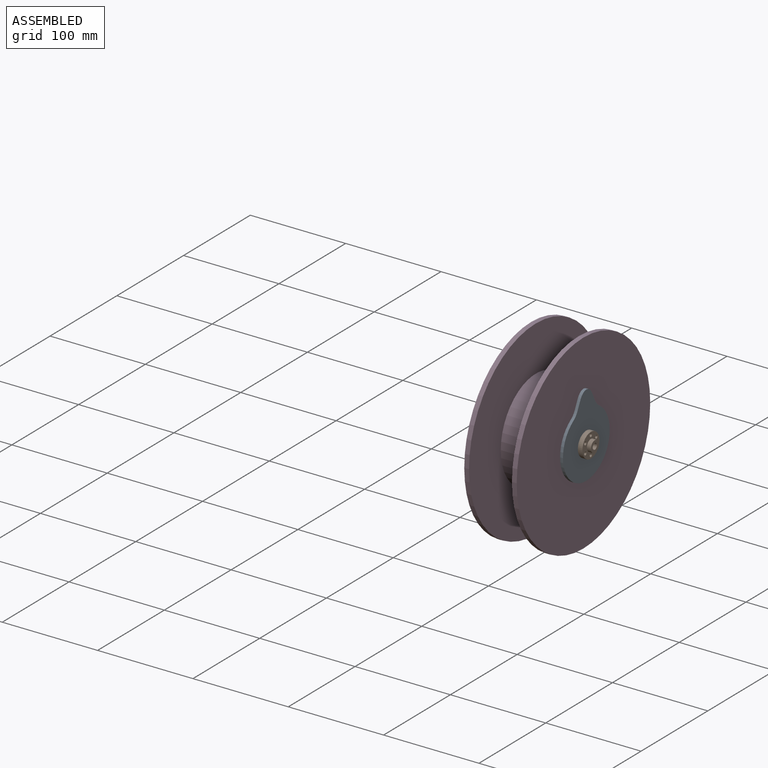
[diagram: assembled view]
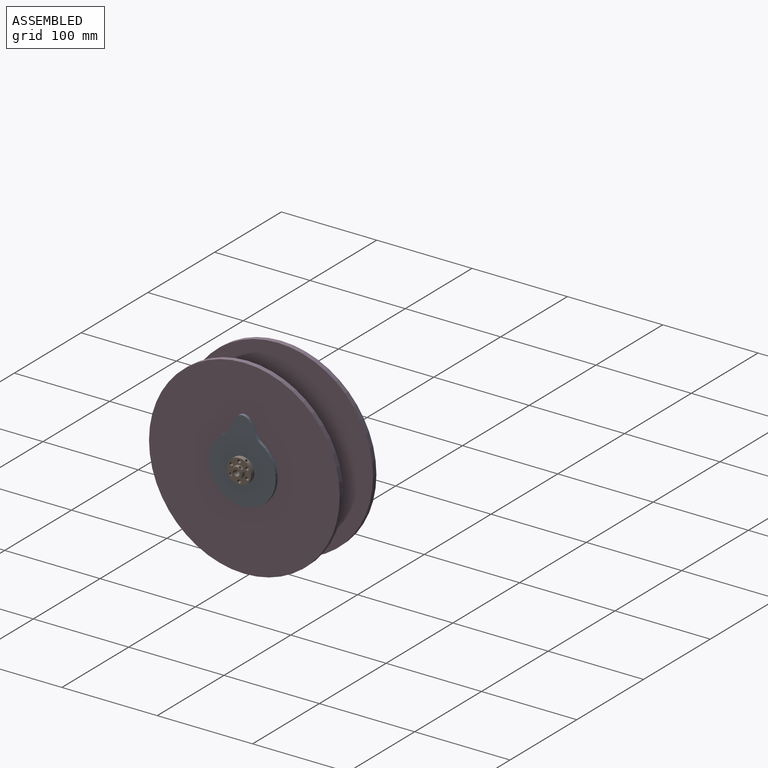
[diagram: assembled view, second angle]
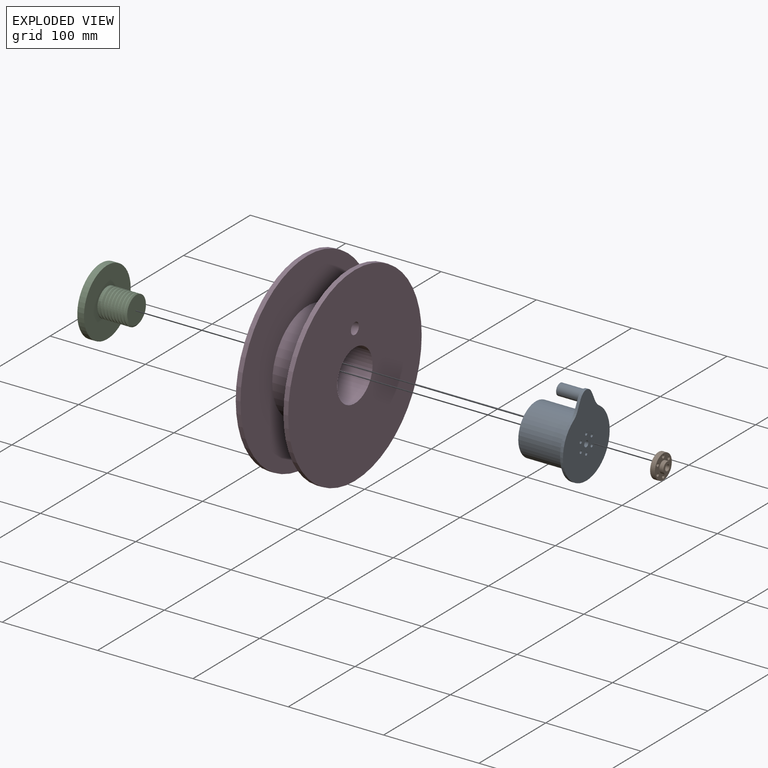
[diagram: exploded view]
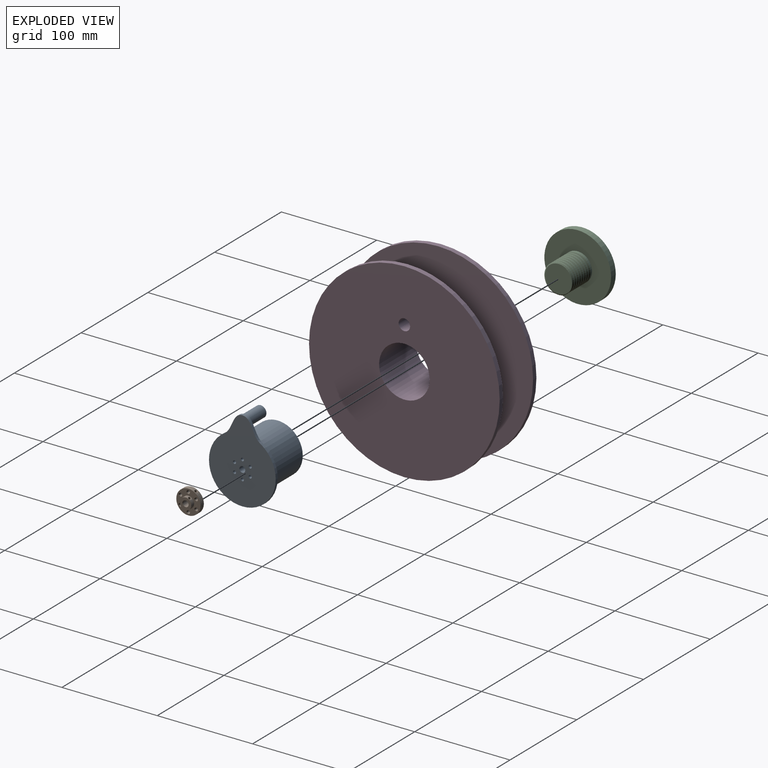
[diagram: exploded view, second angle]
ASSEMBLY  parts=4 mates=3
PART A: 33 faces, bbox 70x86.5x55.1 mm
  f0: extruded ~22.19x19.14mm, area 91.8mm2, adj f1,f2,f3,f4
  f1: extruded ~22.19x19.14mm, area 91.8mm2, adj f0,f2,f3,f4
  f2: cylinder r=35mm len=70mm, axis (0,0,-1), area 538.3mm2, adj f0,f1,f3,f4
  f3: plane 86.5x70mm, normal (0,0,1), area 1907.4mm2, adj f0,f1,f2,f5,f7
  f4: plane 86.5x70mm, normal (0,0,-1), area 4106.8mm2, adj f0,f1,f2,f26,f27,f28,f29,f30
  f5: cylinder r=6mm len=24.5mm, axis (0,0,-1), area 923.6mm2, adj f3,f6
  f6: plane 12x12mm, normal (0,0,1), area 113.1mm2, adj f5
  f7: cylinder r=26.25mm len=52.5mm, axis (0,0,-1), area 8246.7mm2, adj f3,f8
  f8: plane 52.51x52.51mm, normal (0,0,1), area 1399.6mm2, adj f7,f9,f11,f12
  f9: cone r=13.11mm half-angle=45deg, axis (0,0,1), area 171.4mm2, adj f8,f11,f12,f14,f24
  f10: plane 2.57x1.74mm, normal (-0.78,0.62,0), area 2.8mm2, adj f11,f12,f13
  f11: bspline ~44.08x36.26mm, area 2762.7mm2, adj f8,f9,f10,f12,f13,f14,f15,f16
  f12: bspline ~44.08x36.26mm, area 2678.1mm2, adj f8,f9,f10,f11,f13,f14,f15,f16
  f13: cylinder r=13.49mm len=26.97mm, axis (0,0,1), area 235.2mm2, adj f10,f11,f12,f23,f25
  f14: cylinder r=13.49mm len=26.97mm, axis (0,0,1), area 70.8mm2, adj f9,f11,f12,f15,f24
  f15: cylinder r=13.49mm len=26.97mm, axis (0,0,1), area 79.4mm2, adj f11,f12,f14,f16
  f16: cylinder r=13.49mm len=26.97mm, axis (0,0,1), area 79.5mm2, adj f11,f12,f15,f17
  f17: cylinder r=13.49mm len=26.97mm, axis (0,0,1), area 79.5mm2, adj f11,f12,f16,f18
  f18: cylinder r=13.49mm len=26.97mm, axis (0,0,1), area 79.5mm2, adj f11,f12,f17,f19
  f19: cylinder r=13.49mm len=26.97mm, axis (0,0,1), area 79.4mm2, adj f11,f12,f18,f20
  f20: cylinder r=13.49mm len=26.97mm, axis (0,0,1), area 79.4mm2, adj f11,f12,f19,f21
  f21: cylinder r=13.49mm len=26.97mm, axis (0,0,1), area 79.6mm2, adj f11,f12,f20,f22
  f22: cylinder r=13.49mm len=26.97mm, axis (0,0,1), area 79.7mm2, adj f11,f12,f21,f23
  f23: cylinder r=13.49mm len=26.97mm, axis (0,0,1), area 79.6mm2, adj f11,f12,f13,f22
  f24: cylinder r=13.49mm len=2.52mm, axis (0,0,1), area 0.1mm2, adj f9,f12,f14
  f25: plane 26.97x26.97mm, normal (0,0,1), area 492.8mm2, adj f13,f26,f27,f28,f29,f30,f31,f32
  f26: cylinder r=1.6mm len=10mm, axis (0,0,-1), area 100.5mm2, adj f4,f25
  f27: cylinder r=3.1mm len=10mm, axis (0,0,-1), area 194.8mm2, adj f4,f25
  f28: cylinder r=1.6mm len=10mm, axis (0,0,-1), area 100.5mm2, adj f4,f25
  f29: cylinder r=1.6mm len=10mm, axis (0,0,-1), area 100.5mm2, adj f4,f25
  f30: cylinder r=1.6mm len=10mm, axis (0,0,-1), area 100.5mm2, adj f4,f25
  f31: cylinder r=1.6mm len=10mm, axis (0,0,-1), area 100.5mm2, adj f4,f25
  f32: cylinder r=1.6mm len=10mm, axis (0,0,-1), area 100.5mm2, adj f4,f25
PART B: 277 faces, bbox 25.4x25.4x9.2 mm
  f0: bspline ~3.27x2.94mm, area 5.6mm2, adj f17,f26
  f1: bspline ~3.07x2.86mm, area 4.8mm2, adj f16,f19
  f2: cone r=3mm half-angle=45deg, axis (0,0,1), area 5.5mm2, adj f18,f29
  f3: cone r=3.2mm half-angle=45deg, axis (0,0,-1), area 5.5mm2, adj f18,f28
  f4: cone r=1.25mm half-angle=45deg, axis (0,0,1), area 6.7mm2, adj f25,f27
  f5: cone r=1.25mm half-angle=45deg, axis (0,0,1), area 6.7mm2, adj f24,f27
  f6: cone r=1.25mm half-angle=45deg, axis (0,0,1), area 6.7mm2, adj f23,f27
  f7: cone r=1.25mm half-angle=45deg, axis (0,0,1), area 6.7mm2, adj f22,f27
  f8: cone r=1.25mm half-angle=45deg, axis (0,0,1), area 6.7mm2, adj f21,f27
  f9: cone r=1.25mm half-angle=45deg, axis (0,0,1), area 6.7mm2, adj f20,f27
  f10: cone r=1.75mm half-angle=45deg, axis (0,0,-1), area 6.7mm2, adj f20,f28
  f11: cone r=1.75mm half-angle=45deg, axis (0,0,-1), area 6.7mm2, adj f25,f28
  f12: cone r=1.75mm half-angle=45deg, axis (0,0,-1), area 6.7mm2, adj f24,f28
  f13: cone r=1.75mm half-angle=45deg, axis (0,0,-1), area 6.7mm2, adj f23,f28
  f14: cone r=1.75mm half-angle=45deg, axis (0,0,-1), area 6.7mm2, adj f22,f28
  f15: cone r=1.75mm half-angle=45deg, axis (0,0,-1), area 6.7mm2, adj f21,f28
  f16: cylinder r=1.25mm len=3.72mm, axis (0.5,0.87,0), area 20.5mm2, adj f1,f18
  f17: cylinder r=1.25mm len=9.5mm, axis (0.5,0.87,0), area 73.3mm2, adj f0,f18
  f18: cylinder r=3mm len=8.8mm, axis (0,0,1), area 155.8mm2, adj f2,f3,f16,f17
  f19: cylinder r=6mm len=12mm, axis (0,0,-1), area 150.3mm2, adj f1,f27,f29
  f20: cylinder r=1.25mm len=4mm, axis (0,0,1), area 31.4mm2, adj f9,f10
  f21: cylinder r=1.25mm len=4mm, axis (0,0,1), area 31.4mm2, adj f8,f15
  f22: cylinder r=1.25mm len=4mm, axis (0,0,1), area 31.4mm2, adj f7,f14
  f23: cylinder r=1.25mm len=4mm, axis (0,0,1), area 31.4mm2, adj f6,f13
  f24: cylinder r=1.25mm len=4mm, axis (0,0,1), area 31.4mm2, adj f5,f12
  f25: cylinder r=1.25mm len=4mm, axis (0,0,1), area 31.4mm2, adj f4,f11
  f26: cylinder r=12.7mm len=25.4mm, axis (0,0,-1), area 390.2mm2, adj f0,f27,f28
  f27: plane 25.4x25.4mm, normal (0,0,1), area 325.6mm2, adj f4,f5,f6,f7,f8,f9,f19,f26
  f28: plane 25.4x25.4mm, normal (0,0,-1), area 416.8mm2, adj f3,f10,f11,f12,f13,f14,f15,f26
  f29: plane 12x12mm, normal (0,0,1), area 80.9mm2, adj f2,f19
  f30: plane 0.05x0.04mm, normal (0,-1,0), area 0mm2, adj f27,f31,f42,f43
  f31: plane 0.22x0.06mm, normal (-0.97,0.25,0), area 0mm2, adj f27,f30,f32,f43
  f32: plane 0.05x0.03mm, normal (0,1,0), area 0mm2, adj f27,f31,f33,f43
  f33: plane 0.17x0.06mm, normal (0.95,0.31,0), area 0mm2, adj f27,f32,f34,f43
  f34: plane 0.17x0.06mm, normal (-0.95,0.31,0), area 0mm2, adj f27,f33,f35,f43
  f35: plane 0.05x0.03mm, normal (0,1,0), area 0mm2, adj f27,f34,f36,f43
  f36: plane 0.22x0.06mm, normal (0.97,0.25,0), area 0mm2, adj f27,f35,f37,f43
  f37: plane 0.05x0.04mm, normal (0,-1,0), area 0mm2, adj f27,f36,f38,f43
  f38: plane 0.17x0.05mm, normal (-0.97,-0.23,0), area 0mm2, adj f27,f37,f39,f43
  f39: plane 0.17x0.06mm, normal (0.95,-0.31,0), area 0mm2, adj f27,f38,f40,f43
  f40: plane 0.05x0.03mm, normal (0,-1,0), area 0mm2, adj f27,f39,f41,f43
  f41: plane 0.17x0.06mm, normal (-0.95,-0.31,0), area 0mm2, adj f27,f40,f42,f43
  f42: plane 0.17x0.05mm, normal (0.98,-0.21,0), area 0mm2, adj f27,f30,f41,f43
  f43: plane 0.3x0.22mm, normal (0,0,1), area 0mm2, adj f30,f31,f32,f33,f34,f35,f36,f37
  f44: plane 0.05x0.04mm, normal (0,-1,0), area 0mm2, adj f27,f45,f56,f57
  f45: plane 0.22x0.06mm, normal (-0.97,0.25,0), area 0mm2, adj f27,f44,f46,f57
  f46: plane 0.05x0.03mm, normal (0,1,0), area 0mm2, adj f27,f45,f47,f57
  f47: plane 0.17x0.06mm, normal (0.95,0.31,0), area 0mm2, adj f27,f46,f48,f57
  f48: plane 0.17x0.06mm, normal (-0.95,0.31,0), area 0mm2, adj f27,f47,f49,f57
  f49: plane 0.05x0.03mm, normal (0,1,0), area 0mm2, adj f27,f48,f50,f57
  f50: plane 0.22x0.06mm, normal (0.97,0.25,0), area 0mm2, adj f27,f49,f51,f57
  f51: plane 0.05x0.04mm, normal (0,-1,0), area 0mm2, adj f27,f50,f52,f57
  f52: plane 0.17x0.05mm, normal (-0.97,-0.23,0), area 0mm2, adj f27,f51,f53,f57
  f53: plane 0.17x0.06mm, normal (0.95,-0.31,0), area 0mm2, adj f27,f52,f54,f57
  f54: plane 0.05x0.03mm, normal (0,-1,0), area 0mm2, adj f27,f53,f55,f57
  f55: plane 0.17x0.06mm, normal (-0.95,-0.31,0), area 0mm2, adj f27,f54,f56,f57
  f56: plane 0.17x0.05mm, normal (0.98,-0.21,0), area 0mm2, adj f27,f44,f55,f57
  f57: plane 0.3x0.22mm, normal (0,0,1), area 0mm2, adj f44,f45,f46,f47,f48,f49,f50,f51
  f58: plane 0.05x0.04mm, normal (0,-1,0), area 0mm2, adj f27,f59,f70,f71
  f59: plane 0.22x0.06mm, normal (-0.97,0.25,0), area 0mm2, adj f27,f58,f60,f71
  f60: plane 0.05x0.03mm, normal (0,1,0), area 0mm2, adj f27,f59,f61,f71
  f61: plane 0.17x0.06mm, normal (0.95,0.31,0), area 0mm2, adj f27,f60,f62,f71
  f62: plane 0.17x0.06mm, normal (-0.95,0.31,0), area 0mm2, adj f27,f61,f63,f71
  f63: plane 0.05x0.03mm, normal (0,1,0), area 0mm2, adj f27,f62,f64,f71
  f64: plane 0.22x0.06mm, normal (0.97,0.25,0), area 0mm2, adj f27,f63,f65,f71
  f65: plane 0.05x0.04mm, normal (0,-1,0), area 0mm2, adj f27,f64,f66,f71
  f66: plane 0.17x0.05mm, normal (-0.97,-0.23,0), area 0mm2, adj f27,f65,f67,f71
  f67: plane 0.17x0.06mm, normal (0.95,-0.31,0), area 0mm2, adj f27,f66,f68,f71
  f68: plane 0.05x0.03mm, normal (0,-1,0), area 0mm2, adj f27,f67,f69,f71
  f69: plane 0.17x0.06mm, normal (-0.95,-0.31,0), area 0mm2, adj f27,f68,f70,f71
  f70: plane 0.17x0.05mm, normal (0.98,-0.21,0), area 0mm2, adj f27,f58,f69,f71
  f71: plane 0.3x0.22mm, normal (0,0,1), area 0mm2, adj f58,f59,f60,f61,f62,f63,f64,f65
  f72: plane 0.06x0.05mm, normal (-1,0,0), area 0mm2, adj f27,f73,f75,f76
  f73: plane 0.05x0.05mm, normal (0,1,0), area 0mm2, adj f27,f72,f74,f76
  f74: plane 0.06x0.05mm, normal (1,0,0), area 0mm2, adj f27,f73,f75,f76
  f75: plane 0.05x0.05mm, normal (0,-1,0), area 0mm2, adj f27,f72,f74,f76
  f76: plane 0.06x0.05mm, normal (0,0,1), area 0mm2, adj f72,f73,f74,f75
  f77: extruded ~0.11x0.08mm, area 0mm2, adj f27,f78,f86,f87
  f78: extruded ~0.09x0.05mm, area 0mm2, adj f27,f77,f79,f87
  f79: cylinder r=0.09mm len=0.07mm, axis (0,0,-1), area 0mm2, adj f27,f78,f80,f87
  f80: cylinder r=0.11mm len=0.06mm, axis (0,0,-1), area 0mm2, adj f27,f79,f81,f87
  f81: plane 0.09x0.05mm, normal (-1,0,0), area 0mm2, adj f27,f80,f82,f87
  f82: plane 0.05x0.04mm, normal (0,1,0), area 0mm2, adj f27,f81,f83,f87
  f83: plane 0.3x0.05mm, normal (1,0,0), area 0mm2, adj f27,f82,f84,f87
  f84: plane 0.05x0.04mm, normal (0,-1,0), area 0mm2, adj f27,f83,f85,f87
  f85: plane 0.05x0.02mm, normal (-1,0,0), area 0mm2, adj f27,f84,f86,f87
  f86: extruded ~0.07x0.05mm, area 0mm2, adj f27,f77,f85,f87
  f87: plane 0.31x0.19mm, normal (0,0,1), area 0mm2, adj f77,f78,f79,f80,f81,f82,f83,f84
  f88: extruded ~0.08x0.06mm, area 0mm2, adj f87,f89,f92,f93
  f89: cylinder r=0.14mm len=0.05mm, axis (0,0,1), area 0mm2, adj f87,f88,f90,f93
  f90: plane 0.13x0.05mm, normal (-1,0,0), area 0mm2, adj f87,f89,f91,f93
  f91: extruded ~0.06x0.05mm, area 0mm2, adj f87,f90,f92,f93
  f92: extruded ~0.08x0.05mm, area 0mm2, adj f87,f88,f91,f93
  f93: plane 0.17x0.12mm, normal (0,0,1), area 0mm2, adj f88,f89,f90,f91,f92
  f94: extruded ~0.12x0.1mm, area 0mm2, adj f27,f95,f97,f98
  f95: extruded ~0.12x0.1mm, area 0mm2, adj f27,f94,f96,f98
  f96: extruded ~0.12x0.1mm, area 0mm2, adj f27,f95,f97,f98
  f97: extruded ~0.12x0.1mm, area 0mm2, adj f27,f94,f96,f98
  f98: plane 0.24x0.2mm, normal (0,0,1), area 0mm2, adj f94,f95,f96,f97,f99,f100,f101,f102
  f99: extruded ~0.08x0.06mm, area 0mm2, adj f98,f100,f102,f103
  f100: extruded ~0.08x0.06mm, area 0mm2, adj f98,f99,f101,f103
  f101: extruded ~0.08x0.06mm, area 0mm2, adj f98,f100,f102,f103
  f102: extruded ~0.08x0.06mm, area 0mm2, adj f98,f99,f101,f103
  f103: plane 0.17x0.13mm, normal (0,0,1), area 0mm2, adj f99,f100,f101,f102
  f104: plane 0.31x0.05mm, normal (-1,0,0), area 0mm2, adj f27,f105,f107,f108
  f105: plane 0.05x0.04mm, normal (0,1,0), area 0mm2, adj f27,f104,f106,f108
  f106: plane 0.31x0.05mm, normal (1,0,0), area 0mm2, adj f27,f105,f107,f108
  f107: plane 0.05x0.04mm, normal (0,-1,0), area 0mm2, adj f27,f104,f106,f108
  f108: plane 0.31x0.04mm, normal (0,0,1), area 0mm2, adj f104,f105,f106,f107
  f109: extruded ~0.12x0.1mm, area 0mm2, adj f27,f110,f112,f113
  f110: extruded ~0.12x0.1mm, area 0mm2, adj f27,f109,f111,f113
  f111: extruded ~0.12x0.1mm, area 0mm2, adj f27,f110,f112,f113
  f112: extruded ~0.12x0.1mm, area 0mm2, adj f27,f109,f111,f113
  f113: plane 0.24x0.2mm, normal (0,0,1), area 0mm2, adj f109,f110,f111,f112,f114,f115,f116,f117
  f114: extruded ~0.08x0.06mm, area 0mm2, adj f113,f115,f117,f118
  f115: extruded ~0.08x0.06mm, area 0mm2, adj f113,f114,f116,f118
  f116: extruded ~0.08x0.06mm, area 0mm2, adj f113,f115,f117,f118
  f117: extruded ~0.08x0.06mm, area 0mm2, adj f113,f114,f116,f118
  f118: plane 0.17x0.13mm, normal (0,0,1), area 0mm2, adj f114,f115,f116,f117
  f119: plane 0.31x0.05mm, normal (-1,0,0), area 0mm2, adj f27,f120,f122,f123
  f120: plane 0.05x0.04mm, normal (0,1,0), area 0mm2, adj f27,f119,f121,f123
  f121: plane 0.31x0.05mm, normal (1,0,0), area 0mm2, adj f27,f120,f122,f123
  f122: plane 0.05x0.04mm, normal (0,-1,0), area 0mm2, adj f27,f119,f121,f123
  f123: plane 0.31x0.04mm, normal (0,0,1), area 0mm2, adj f119,f120,f121,f122
  f124: plane 0.22x0.05mm, normal (-1,0,0), area 0mm2, adj f27,f125,f136,f137
  f125: plane 0.05x0.04mm, normal (0,1,0), area 0mm2, adj f27,f124,f126,f137
  f126: plane 0.05x0.02mm, normal (1,0,0), area 0mm2, adj f27,f125,f127,f137
  f127: extruded ~0.07x0.05mm, area 0mm2, adj f27,f126,f128,f137
  f128: extruded ~0.08x0.07mm, area 0mm2, adj f27,f127,f129,f137
  f129: plane 0.14x0.05mm, normal (1,0,0), area 0mm2, adj f27,f128,f130,f137
  f130: plane 0.05x0.04mm, normal (0,-1,0), area 0mm2, adj f27,f129,f131,f137
  f131: plane 0.13x0.05mm, normal (-1,0,0), area 0mm2, adj f27,f130,f132,f137
  f132: extruded ~0.05x0.05mm, area 0mm2, adj f27,f131,f133,f137
  f133: extruded ~0.05x0.04mm, area 0mm2, adj f27,f132,f134,f137
  f134: extruded ~0.06x0.05mm, area 0mm2, adj f27,f133,f135,f137
  f135: plane 0.17x0.05mm, normal (1,0,0), area 0mm2, adj f27,f134,f136,f137
  f136: plane 0.05x0.04mm, normal (0,-1,0), area 0mm2, adj f27,f124,f135,f137
  f137: plane 0.23x0.18mm, normal (0,0,1), area 0mm2, adj f124,f125,f126,f127,f128,f129,f130,f131
  f138: plane 0.06x0.05mm, normal (-1,0,0), area 0mm2, adj f27,f139,f141,f142
  f139: plane 0.05x0.05mm, normal (0,1,0), area 0mm2, adj f27,f138,f140,f142
  f140: plane 0.06x0.05mm, normal (1,0,0), area 0mm2, adj f27,f139,f141,f142
  f141: plane 0.05x0.05mm, normal (0,-1,0), area 0mm2, adj f27,f138,f140,f142
  f142: plane 0.06x0.05mm, normal (0,0,1), area 0mm2, adj f138,f139,f140,f141
  f143: plane 0.05x0.04mm, normal (-1,0,0), area 0mm2, adj f27,f144,f156,f157
  f144: extruded ~0.07x0.05mm, area 0mm2, adj f27,f143,f145,f157
  f145: extruded ~0.08x0.05mm, area 0mm2, adj f27,f144,f146,f157
  f146: extruded ~0.09x0.05mm, area 0mm2, adj f27,f145,f147,f157
  f147: extruded ~0.12x0.11mm, area 0mm2, adj f27,f146,f148,f157
  f148: extruded ~0.07x0.05mm, area 0mm2, adj f27,f147,f149,f157
  f149: plane 0.05x0.04mm, normal (-1,0,0), area 0mm2, adj f27,f148,f150,f157
  f150: plane 0.05x0mm, normal (0,1,0), area 0mm2, adj f27,f149,f151,f157
  f151: extruded ~0.07x0.05mm, area 0mm2, adj f27,f150,f152,f157
  f152: extruded ~0.08x0.07mm, area 0mm2, adj f27,f151,f153,f157
  f153: extruded ~0.08x0.07mm, area 0mm2, adj f27,f152,f154,f157
  f154: cylinder r=0.09mm len=0.05mm, axis (0,0,1), area 0mm2, adj f27,f153,f155,f157
  f155: cylinder r=0.16mm len=0.05mm, axis (0,0,1), area 0mm2, adj f27,f154,f156,f157
  f156: plane 0.05x0mm, normal (0,-1,0), area 0mm2, adj f27,f143,f155,f157
  f157: plane 0.23x0.18mm, normal (0,0,1), area 0mm2, adj f143,f144,f145,f146,f147,f148,f149,f150
  f158: extruded ~0.12x0.1mm, area 0mm2, adj f27,f159,f161,f162
  f159: extruded ~0.12x0.1mm, area 0mm2, adj f27,f158,f160,f162
  f160: extruded ~0.12x0.1mm, area 0mm2, adj f27,f159,f161,f162
  f161: extruded ~0.12x0.1mm, area 0mm2, adj f27,f158,f160,f162
  f162: plane 0.24x0.2mm, normal (0,0,1), area 0mm2, adj f158,f159,f160,f161,f163,f164,f165,f166
  f163: extruded ~0.08x0.06mm, area 0mm2, adj f162,f164,f166,f167
  f164: extruded ~0.08x0.06mm, area 0mm2, adj f162,f163,f165,f167
  f165: extruded ~0.08x0.06mm, area 0mm2, adj f162,f164,f166,f167
  f166: extruded ~0.08x0.06mm, area 0mm2, adj f162,f163,f165,f167
  f167: plane 0.17x0.13mm, normal (0,0,1), area 0mm2, adj f163,f164,f165,f166
  f168: plane 0.14x0.05mm, normal (-1,0,0), area 0mm2, adj f27,f169,f189,f190
  f169: plane 0.05x0.04mm, normal (0,1,0), area 0mm2, adj f27,f168,f170,f190
  f170: plane 0.13x0.05mm, normal (1,0,0), area 0mm2, adj f27,f169,f171,f190
  f171: extruded ~0.05x0.05mm, area 0mm2, adj f27,f170,f172,f190
  f172: extruded ~0.05x0.04mm, area 0mm2, adj f27,f171,f173,f190
  f173: extruded ~0.06x0.05mm, area 0mm2, adj f27,f172,f174,f190
  f174: cylinder r=0.19mm len=0.05mm, axis (0,0,-1), area 0mm2, adj f27,f173,f175,f190
  f175: plane 0.14x0.05mm, normal (-1,0,0), area 0mm2, adj f27,f174,f176,f190
  f176: plane 0.05x0.04mm, normal (0,1,0), area 0mm2, adj f27,f175,f177,f190
  f177: plane 0.13x0.05mm, normal (1,0,0), area 0mm2, adj f27,f176,f178,f190
  f178: extruded ~0.05x0.05mm, area 0mm2, adj f27,f177,f179,f190
  f179: extruded ~0.05x0.04mm, area 0mm2, adj f27,f178,f180,f190
  f180: extruded ~0.06x0.05mm, area 0mm2, adj f27,f179,f181,f190
  f181: plane 0.17x0.05mm, normal (-1,0,0), area 0mm2, adj f27,f180,f182,f190
  f182: plane 0.05x0.04mm, normal (0,1,0), area 0mm2, adj f27,f181,f183,f190
  f183: plane 0.22x0.05mm, normal (1,0,0), area 0mm2, adj f27,f182,f184,f190
  f184: plane 0.05x0.04mm, normal (0,-1,0), area 0mm2, adj f27,f183,f185,f190
  f185: plane 0.05x0.02mm, normal (-1,0,0), area 0mm2, adj f27,f184,f186,f190
  f186: extruded ~0.07x0.05mm, area 0mm2, adj f27,f185,f187,f190
  f187: cylinder r=0.06mm len=0.06mm, axis (0,0,-1), area 0mm2, adj f27,f186,f188,f190
  f188: extruded ~0.08x0.05mm, area 0mm2, adj f27,f187,f189,f190
  f189: extruded ~0.08x0.07mm, area 0mm2, adj f27,f168,f188,f190
  f190: plane 0.32x0.23mm, normal (0,0,1), area 0mm2, adj f168,f169,f170,f171,f172,f173,f174,f175
  f191: extruded ~0.27x0.26mm, area 0mm2, adj f27,f192,f200,f201
  f192: plane 0.32x0.05mm, normal (1,0,0), area 0mm2, adj f27,f191,f193,f201
  f193: plane 0.18x0.05mm, normal (0,-1,0), area 0mm2, adj f27,f192,f194,f201
  f194: plane 0.33x0.05mm, normal (-1,0,0), area 0mm2, adj f27,f193,f195,f201
  f195: extruded ~0.1x0.08mm, area 0mm2, adj f27,f194,f196,f201
  f196: extruded ~0.09x0.08mm, area 0mm2, adj f27,f195,f197,f201
  f197: plane 0.33x0.05mm, normal (1,0,0), area 0mm2, adj f27,f196,f198,f201
  f198: plane 0.18x0.05mm, normal (0,-1,0), area 0mm2, adj f27,f197,f199,f201
  f199: plane 0.32x0.05mm, normal (-1,0,0), area 0mm2, adj f27,f198,f200,f201
  f200: extruded ~0.27x0.27mm, area 0mm2, adj f27,f191,f199,f201
  f201: plane 0.59x0.54mm, normal (0,0,1), area 0.2mm2, adj f191,f192,f193,f194,f195,f196,f197,f198
  f202: extruded ~0.3x0.29mm, area 0mm2, adj f27,f203,f207,f208
  f203: plane 0.05x0mm, normal (1,0,0), area 0mm2, adj f27,f202,f204,f208
  f204: extruded ~0.31x0.29mm, area 0mm2, adj f27,f203,f205,f208
  f205: extruded ~0.3x0.29mm, area 0mm2, adj f27,f204,f206,f208
  f206: plane 0.05x0mm, normal (-1,0,0), area 0mm2, adj f27,f205,f207,f208
  f207: extruded ~0.31x0.29mm, area 0mm2, adj f27,f202,f206,f208
  f208: plane 0.61x0.59mm, normal (0,0,1), area 0.2mm2, adj f202,f203,f204,f205,f206,f207,f209,f210
  f209: extruded ~0.14x0.13mm, area 0mm2, adj f208,f210,f214,f215
  f210: extruded ~0.14x0.13mm, area 0mm2, adj f208,f209,f211,f215
  f211: plane 0.05x0mm, normal (-1,0,0), area 0mm2, adj f208,f210,f212,f215
  f212: extruded ~0.14x0.13mm, area 0mm2, adj f208,f211,f213,f215
  f213: extruded ~0.14x0.13mm, area 0mm2, adj f208,f212,f214,f215
  f214: plane 0.05x0mm, normal (1,0,0), area 0mm2, adj f208,f209,f213,f215
  f215: plane 0.28x0.26mm, normal (0,0,1), area 0.1mm2, adj f209,f210,f211,f212,f213,f214
  f216: plane 0.89x0.05mm, normal (1,0,0), area 0mm2, adj f27,f217,f219,f220
  f217: plane 0.19x0.05mm, normal (0,-1,0), area 0mm2, adj f27,f216,f218,f220
  f218: plane 0.89x0.05mm, normal (-1,0,0), area 0mm2, adj f27,f217,f219,f220
  f219: plane 0.19x0.05mm, normal (0,1,0), area 0mm2, adj f27,f216,f218,f220
  f220: plane 0.89x0.19mm, normal (0,0,1), area 0.2mm2, adj f216,f217,f218,f219
  f221: extruded ~0.3x0.29mm, area 0mm2, adj f27,f222,f226,f227
  f222: plane 0.05x0mm, normal (1,0,0), area 0mm2, adj f27,f221,f223,f227
  f223: extruded ~0.31x0.29mm, area 0mm2, adj f27,f222,f224,f227
  f224: extruded ~0.3x0.29mm, area 0mm2, adj f27,f223,f225,f227
  f225: plane 0.05x0mm, normal (-1,0,0), area 0mm2, adj f27,f224,f226,f227
  f226: extruded ~0.31x0.29mm, area 0mm2, adj f27,f221,f225,f227
  f227: plane 0.61x0.59mm, normal (0,0,1), area 0.2mm2, adj f221,f222,f223,f224,f225,f226,f228,f229
  f228: extruded ~0.14x0.13mm, area 0mm2, adj f227,f229,f233,f234
  f229: extruded ~0.14x0.13mm, area 0mm2, adj f227,f228,f230,f234
  f230: plane 0.05x0mm, normal (-1,0,0), area 0mm2, adj f227,f229,f231,f234
  f231: extruded ~0.14x0.13mm, area 0mm2, adj f227,f230,f232,f234
  f232: extruded ~0.14x0.13mm, area 0mm2, adj f227,f231,f233,f234
  f233: plane 0.05x0mm, normal (1,0,0), area 0mm2, adj f227,f228,f232,f234
  f234: plane 0.28x0.26mm, normal (0,0,1), area 0.1mm2, adj f228,f229,f230,f231,f232,f233
  f235: plane 0.89x0.05mm, normal (1,0,0), area 0mm2, adj f27,f236,f238,f239
  f236: plane 0.19x0.05mm, normal (0,-1,0), area 0mm2, adj f27,f235,f237,f239
  f237: plane 0.89x0.05mm, normal (-1,0,0), area 0mm2, adj f27,f236,f238,f239
  f238: plane 0.19x0.05mm, normal (0,1,0), area 0mm2, adj f27,f235,f237,f239
  f239: plane 0.89x0.19mm, normal (0,0,1), area 0.2mm2, adj f235,f236,f237,f238
  f240: extruded ~0.33x0.3mm, area 0mm2, adj f27,f241,f247,f248
  f241: plane 0.05x0mm, normal (-1,0,0), area 0mm2, adj f27,f240,f242,f248
  f242: extruded ~0.35x0.3mm, area 0mm2, adj f27,f241,f243,f248
  f243: plane 0.09x0.05mm, normal (0,1,0), area 0mm2, adj f27,f242,f244,f248
  f244: plane 0.3x0.05mm, normal (-1,0,0), area 0mm2, adj f27,f243,f245,f248
  f245: plane 0.19x0.05mm, normal (0,1,0), area 0mm2, adj f27,f244,f246,f248
  f246: plane 0.89x0.05mm, normal (1,0,0), area 0mm2, adj f27,f245,f247,f248
  f247: plane 0.29x0.05mm, normal (0,-1,0), area 0mm2, adj f27,f240,f246,f248
  f248: plane 0.89x0.62mm, normal (0,0,1), area 0.3mm2, adj f240,f241,f242,f243,f244,f245,f246,f247
  f249: extruded ~0.15x0.13mm, area 0mm2, adj f248,f250,f254,f255
  f250: plane 0.09x0.05mm, normal (0,-1,0), area 0mm2, adj f248,f249,f251,f255
  f251: plane 0.26x0.05mm, normal (-1,0,0), area 0mm2, adj f248,f250,f252,f255
  f252: plane 0.09x0.05mm, normal (0,1,0), area 0mm2, adj f248,f251,f253,f255
  f253: extruded ~0.15x0.13mm, area 0mm2, adj f248,f252,f254,f255
  f254: plane 0.05x0mm, normal (1,0,0), area 0mm2, adj f248,f249,f253,f255
  f255: plane 0.26x0.24mm, normal (0,0,1), area 0.1mm2, adj f249,f250,f251,f252,f253,f254
  f256: extruded ~0.58x0.32mm, area 0mm2, adj f27,f257,f275,f276
  f257: extruded ~1.29x0.14mm, area 0.1mm2, adj f27,f256,f258,f276
  f258: sphere r=1.78mm, area 0mm2, adj f27,f257,f259,f276
  f259: extruded ~0.61x0.32mm, area 0mm2, adj f27,f258,f260,f276
  f260: extruded ~0.54x0.35mm, area 0mm2, adj f27,f259,f261,f276
  f261: extruded ~0.8x0.16mm, area 0mm2, adj f27,f260,f262,f276
  f262: extruded ~0.59x0.59mm, area 0mm2, adj f27,f261,f263,f276
  f263: extruded ~0.69x0.09mm, area 0mm2, adj f27,f262,f264,f276
  f264: extruded ~0.73x0.32mm, area 0mm2, adj f27,f263,f265,f276
  f265: extruded ~0.62x0.2mm, area 0mm2, adj f27,f264,f266,f276
  f266: extruded ~0.66x0.16mm, area 0mm2, adj f27,f265,f267,f276
  f267: extruded ~0.62x0.37mm, area 0mm2, adj f27,f266,f268,f276
  f268: extruded ~1.29x0.16mm, area 0.1mm2, adj f27,f267,f269,f276
  f269: extruded ~0.38x0.09mm, area 0mm2, adj f27,f268,f270,f276
  f270: extruded ~0.36x0.21mm, area 0mm2, adj f27,f269,f271,f276
  f271: plane 0.71x0.05mm, normal (0,1,0), area 0mm2, adj f27,f270,f272,f276
  f272: plane 3.49x0.05mm, normal (1,0,0), area 0.2mm2, adj f27,f271,f273,f276
  f273: plane 3.17x0.05mm, normal (0,-1,0), area 0.2mm2, adj f27,f272,f274,f276
  f274: plane 3.49x0.05mm, normal (-1,0,0), area 0.2mm2, adj f27,f273,f275,f276
  f275: plane 0.62x0.05mm, normal (0,1,0), area 0mm2, adj f27,f256,f274,f276
  f276: plane 3.49x3.17mm, normal (0,0,1), area 8.5mm2, adj f256,f257,f258,f259,f260,f261,f262,f263
PART C: 16 faces, bbox 71.4x71.4x40.2 mm
  f0: cylinder r=35mm len=70mm, axis (0,0,-1), area 1539.4mm2, adj f1,f2
  f1: plane 70x70mm, normal (0,0,1), area 3141.6mm2, adj f0,f3
  f2: plane 70x70mm, normal (0,0,-1), area 3848.5mm2, adj f0
  f3: cylinder r=15mm len=30mm, axis (0,0,1), area 241.1mm2, adj f1,f11,f12,f13,f14
  f4: cylinder r=15mm len=14mm, axis (0,0,1), area 6mm2, adj f5,f13,f15
  f5: cylinder r=15mm len=30mm, axis (0,0,1), area 87.4mm2, adj f4,f6,f12,f13,f15
  f6: cylinder r=15mm len=30mm, axis (0,0,1), area 88.4mm2, adj f5,f7,f12,f13
  f7: cylinder r=15mm len=30mm, axis (0,0,1), area 88.6mm2, adj f6,f8,f12,f13
  f8: cylinder r=15mm len=30mm, axis (0,0,1), area 88.6mm2, adj f7,f9,f12,f13
  f9: cylinder r=15mm len=30mm, axis (0,0,1), area 88.5mm2, adj f8,f10,f12,f13
  f10: cylinder r=15mm len=30mm, axis (0,0,1), area 88.5mm2, adj f9,f11,f12,f13
  f11: cylinder r=15mm len=30mm, axis (0,0,1), area 88.5mm2, adj f3,f10,f12,f13
  f12: bspline ~35.52x31.83mm, area 1860mm2, adj f3,f5,f6,f7,f8,f9,f10,f11
  f13: bspline ~35.52x30.76mm, area 1764.9mm2, adj f3,f4,f5,f6,f7,f8,f9,f10
  f14: plane 2.57x2mm, normal (-0.43,-0.9,0), area 2.8mm2, adj f3,f12,f13
  f15: plane 30.03x29.51mm, normal (0,0,1), area 634.1mm2, adj f4,f5,f12,f13
PART D: 9 faces, bbox 200x200x55 mm
  f0: cylinder r=52.5mm len=105mm, axis (0,0,-1), area 14844mm2, adj f2,f8
  f1: cylinder r=100mm len=200mm, axis (0,0,-1), area 3141.6mm2, adj f2,f3
  f2: plane 200x200mm, normal (0,0,1), area 22756.9mm2, adj f0,f1
  f3: plane 200x200mm, normal (0,0,-1), area 29096.6mm2, adj f1,f4,f5
  f4: cylinder r=6mm len=55mm, axis (0,0,-1), area 2073.5mm2, adj f3,f6
  f5: cylinder r=26.5mm len=55mm, axis (0,0,-1), area 9157.7mm2, adj f3,f6
  f6: plane 200x200mm, normal (0,0,1), area 29096.6mm2, adj f4,f5,f7
  f7: cylinder r=100mm len=200mm, axis (0,0,1), area 3141.6mm2, adj f6,f8
  f8: plane 200x200mm, normal (0,0,-1), area 22756.9mm2, adj f0,f7
PLACE A rot(axis=(0.58,-0.58,-0.58),120deg) t=(31.59,1.36,1.89)mm
PLACE B rot(axis=(0.58,0.58,0.58),120deg) t=(33.89,1.36,1.89)mm
PLACE C rot(axis=(0.58,0.58,0.58),120deg) t=(-33.41,1.36,1.89)mm
PLACE D rot(axis=(0.58,-0.58,-0.58),120deg) t=(28.59,1.36,1.89)mm fixed
MATE slider D.f0 <-> A.f2  axis (1,0,0) through (28.59,1.36,1.89)mm
MATE fastened B.f2 <-> A.f2  axis (1,0,0) through (31.59,1.36,1.89)mm
MATE slider C.f0 <-> D.f0  axis (-1,0,0) through (-33.41,1.36,1.89)mm
